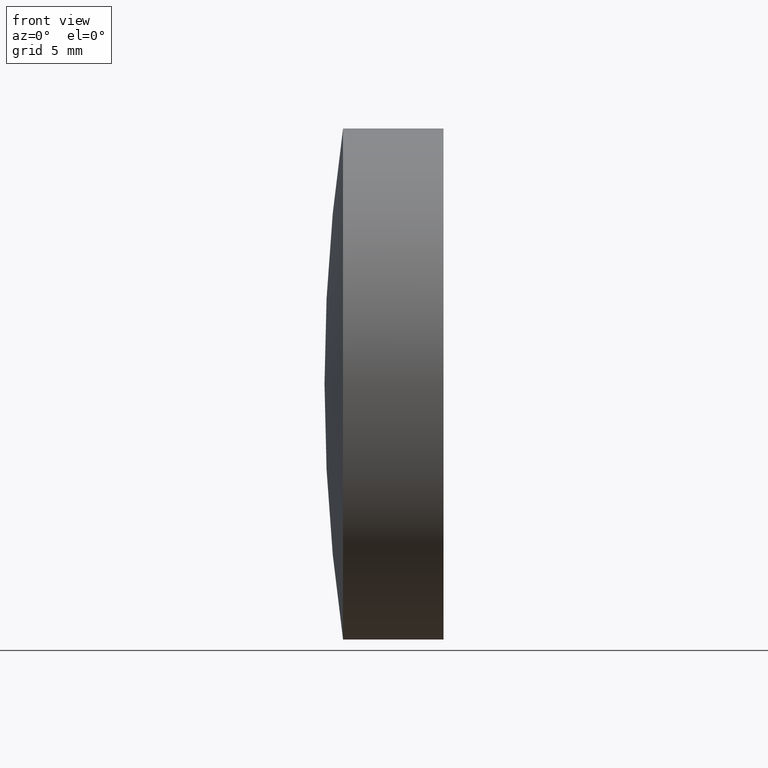
[diagram: clean part render]
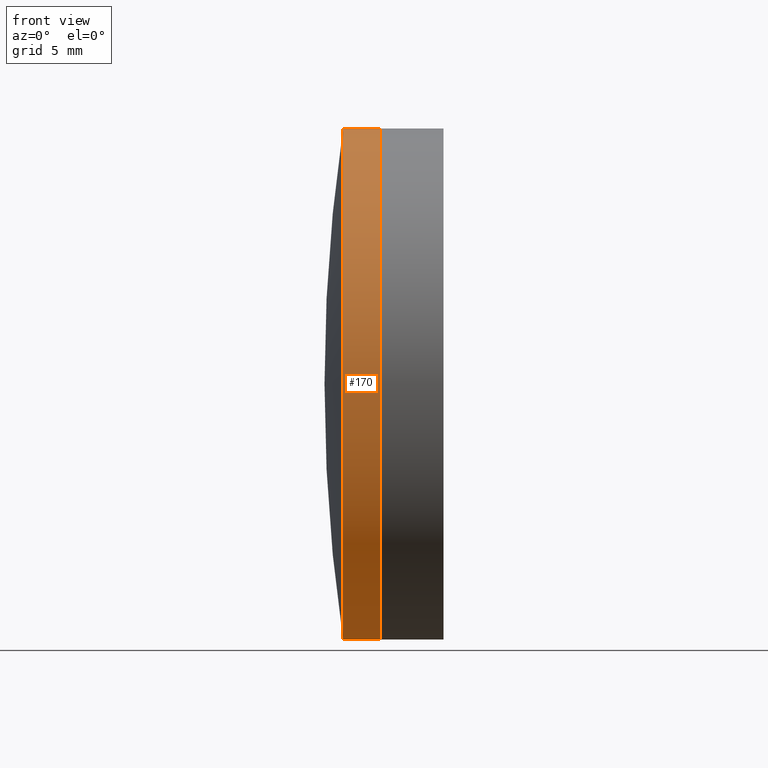
[diagram: same view with one face highlighted and labeled with its STEP entity id]
A machine part, front view. The second image highlights one B-rep face of the part: STEP entity #170.
In plain terms, the highlighted cylindrical surface (partial cylindrical patch) has radius 12.7 mm, axis along (-1, -0, -0).
Its self-contained STEP definition (entity closure, byte-faithful):
#3 = DIRECTION ( 'NONE',  ( 0.0000000000000000000, 0.0000000000000000000, 1.000000000000000000 ) ) ;
#13 = EDGE_LOOP ( 'NONE', ( #24, #138, #259, #236 ) ) ;
#17 = EDGE_CURVE ( 'NONE', #218, #347, #48, .T. ) ;
#19 = CARTESIAN_POINT ( 'NONE',  ( 95.07472966492228700, 0.0000000000000000000, 0.0000000000000000000 ) ) ;
#22 = FACE_OUTER_BOUND ( 'NONE', #13, .T. ) ;
#24 = ORIENTED_EDGE ( 'NONE', *, *, #198, .F. ) ;
#31 = CARTESIAN_POINT ( 'NONE',  ( -0.8160621761658039000, 0.0000000000000000000, 12.70000000000001700 ) ) ;
#44 = CARTESIAN_POINT ( 'NONE',  ( 93.19768497055619600, 0.0000000000000000000, 0.0000000000000000000 ) ) ;
#48 = LINE ( 'NONE', #31, #58 ) ;
#58 = VECTOR ( 'NONE', #223, 1000.000000000000000 ) ;
#59 = VERTEX_POINT ( 'NONE', #258 ) ;
#74 = DIRECTION ( 'NONE',  ( 0.0000000000000000000, 0.0000000000000000000, 1.000000000000000000 ) ) ;
#106 = CYLINDRICAL_SURFACE ( 'NONE', #134, 12.70000000000001700 ) ;
#117 = CIRCLE ( 'NONE', #272, 12.70000000000001900 ) ;
#134 = AXIS2_PLACEMENT_3D ( 'NONE', #305, #168, #139 ) ;
#135 = VERTEX_POINT ( 'NONE', #307 ) ;
#138 = ORIENTED_EDGE ( 'NONE', *, *, #269, .T. ) ;
#139 = DIRECTION ( 'NONE',  ( 0.0000000000000000000, 0.0000000000000000000, 1.000000000000000000 ) ) ;
#163 = VECTOR ( 'NONE', #291, 1000.000000000000000 ) ;
#168 = DIRECTION ( 'NONE',  ( -1.000000000000000000, -0.0000000000000000000, -0.0000000000000000000 ) ) ;
#170 = ADVANCED_FACE ( 'NONE', ( #22 ), #106, .T. ) ;
#172 = CIRCLE ( 'NONE', #256, 12.70000000000001700 ) ;
#198 = EDGE_CURVE ( 'NONE', #59, #135, #266, .T. ) ;
#208 = DIRECTION ( 'NONE',  ( -1.000000000000000000, -0.0000000000000000000, -0.0000000000000000000 ) ) ;
#218 = VERTEX_POINT ( 'NONE', #267 ) ;
#223 = DIRECTION ( 'NONE',  ( -1.000000000000000000, -0.0000000000000000000, -0.0000000000000000000 ) ) ;
#231 = EDGE_CURVE ( 'NONE', #135, #347, #172, .T. ) ;
#233 = DIRECTION ( 'NONE',  ( -1.000000000000000000, -0.0000000000000000000, -0.0000000000000000000 ) ) ;
#236 = ORIENTED_EDGE ( 'NONE', *, *, #231, .F. ) ;
#256 = AXIS2_PLACEMENT_3D ( 'NONE', #44, #233, #74 ) ;
#258 = CARTESIAN_POINT ( 'NONE',  ( 95.07472966492228700, 1.555301434917141000E-015, -12.70000000000002100 ) ) ;
#259 = ORIENTED_EDGE ( 'NONE', *, *, #17, .T. ) ;
#264 = CARTESIAN_POINT ( 'NONE',  ( -0.8160621761658039000, 1.555301434917140600E-015, -12.70000000000001700 ) ) ;
#266 = LINE ( 'NONE', #264, #163 ) ;
#267 = CARTESIAN_POINT ( 'NONE',  ( 95.07472966492228700, 0.0000000000000000000, 12.70000000000001900 ) ) ;
#269 = EDGE_CURVE ( 'NONE', #59, #218, #117, .T. ) ;
#272 = AXIS2_PLACEMENT_3D ( 'NONE', #19, #208, #3 ) ;
#291 = DIRECTION ( 'NONE',  ( -1.000000000000000000, -0.0000000000000000000, -0.0000000000000000000 ) ) ;
#305 = CARTESIAN_POINT ( 'NONE',  ( -0.8160621761658039000, 0.0000000000000000000, 0.0000000000000000000 ) ) ;
#307 = CARTESIAN_POINT ( 'NONE',  ( 93.19768497055619600, 0.0000000000000000000, -12.69999999999996900 ) ) ;
#344 = CARTESIAN_POINT ( 'NONE',  ( 93.19768497055619600, -1.555301434917134900E-015, 12.70000000000003500 ) ) ;
#347 = VERTEX_POINT ( 'NONE', #344 ) ;